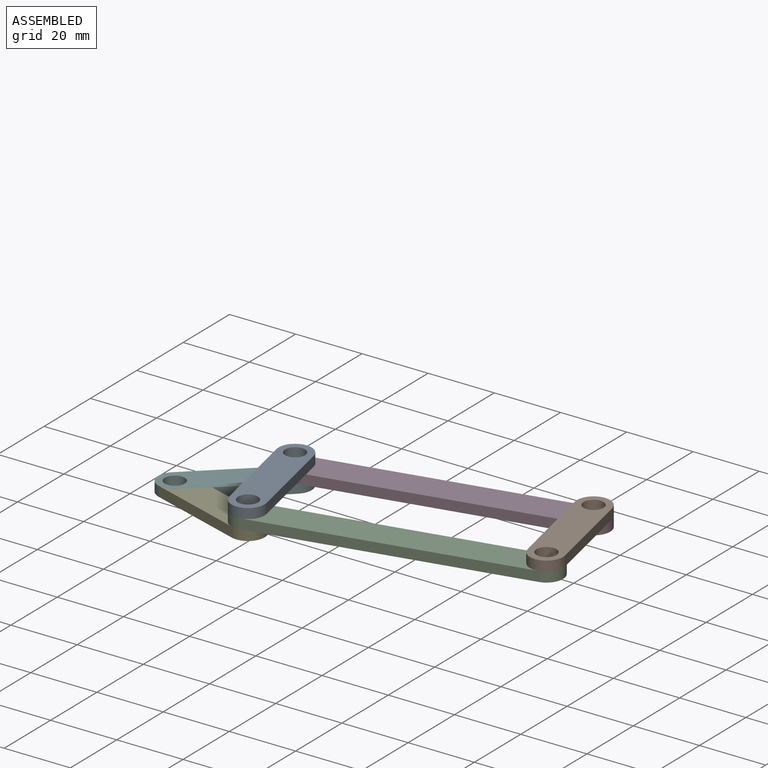
[diagram: assembled view]
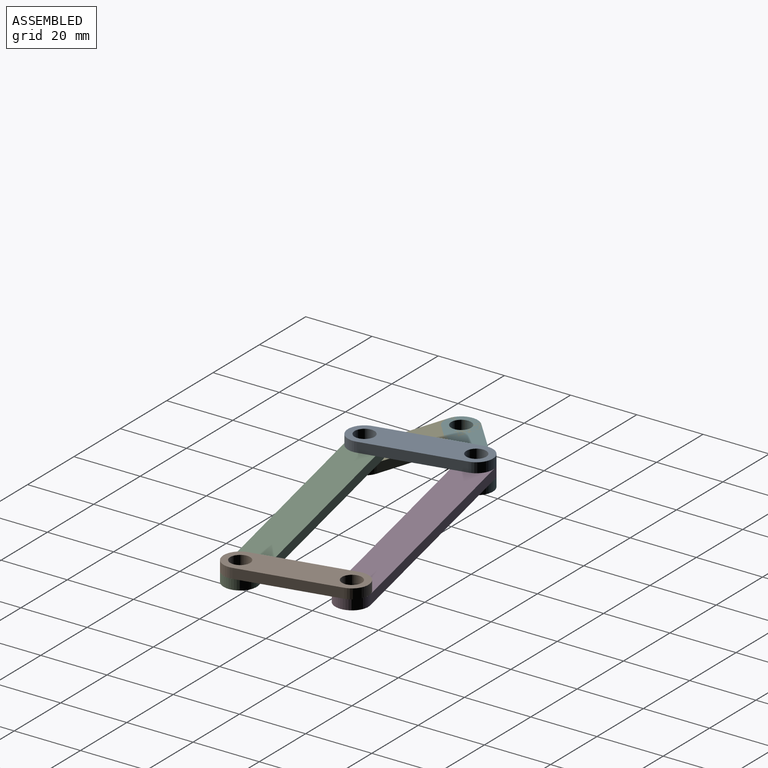
[diagram: assembled view, second angle]
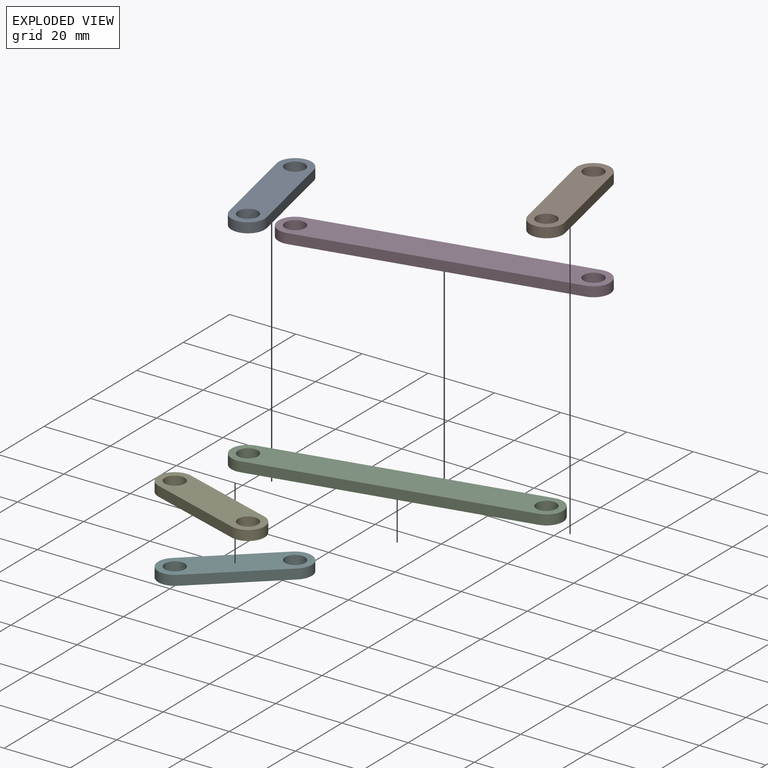
[diagram: exploded view]
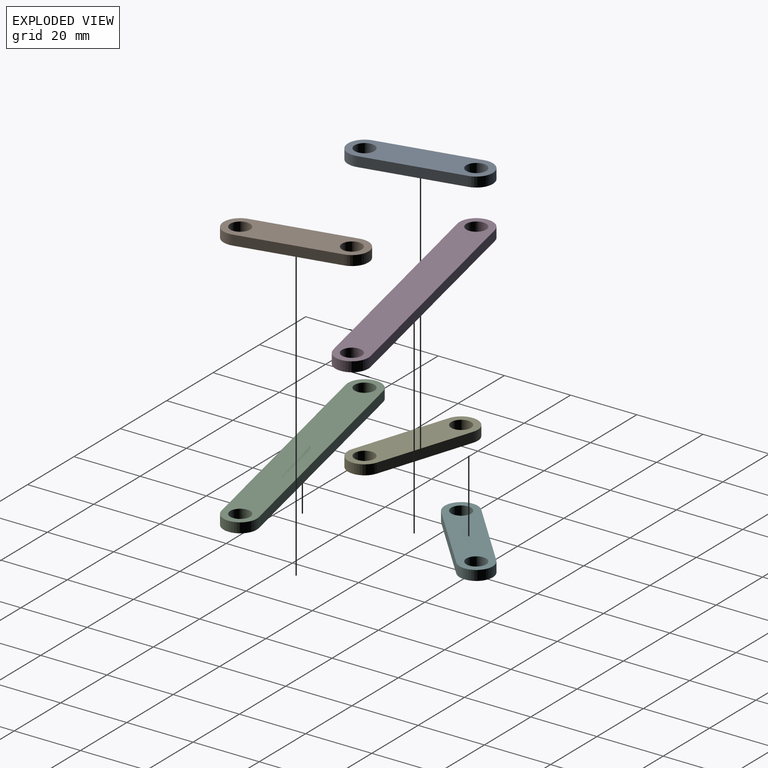
[diagram: exploded view, second angle]
ASSEMBLY  parts=6 mates=7
PART A: 8 faces, bbox 10x3x40 mm
  f0: plane 30x3mm, normal (1,0,0), area 90mm2, adj f1,f4,f6,f7
  f1: cylinder r=5mm len=10mm, axis (0,1,0), area 47.1mm2, adj f0,f2,f6,f7
  f2: plane 30x3mm, normal (-1,0,0), area 90mm2, adj f1,f4,f6,f7
  f3: cylinder r=3mm len=6mm, axis (0,1,0), area 56.5mm2, adj f6,f7
  f4: cylinder r=5mm len=10mm, axis (0,1,0), area 47.1mm2, adj f0,f2,f6,f7
  f5: cylinder r=3mm len=6mm, axis (0,1,0), area 56.5mm2, adj f6,f7
  f6: plane 40x10mm, normal (0,-1,0), area 322mm2, adj f0,f1,f2,f3,f4,f5
  f7: plane 40x10mm, normal (0,1,0), area 322mm2, adj f0,f1,f2,f3,f4,f5
PART B: same geometry as A
PART C: 8 faces, bbox 10x3x90 mm
  f0: plane 80x3mm, normal (-1,0,0), area 240mm2, adj f1,f4,f6,f7
  f1: cylinder r=5mm len=10mm, axis (0,1,0), area 47.1mm2, adj f0,f2,f6,f7
  f2: plane 80x3mm, normal (1,0,0), area 240mm2, adj f1,f4,f6,f7
  f3: cylinder r=3mm len=6mm, axis (0,1,0), area 56.5mm2, adj f6,f7
  f4: cylinder r=5mm len=10mm, axis (0,1,0), area 47.1mm2, adj f0,f2,f6,f7
  f5: cylinder r=3mm len=6mm, axis (0,1,0), area 56.5mm2, adj f6,f7
  f6: plane 90x10mm, normal (0,-1,0), area 822mm2, adj f0,f1,f2,f3,f4,f5
  f7: plane 90x10mm, normal (0,1,0), area 822mm2, adj f0,f1,f2,f3,f4,f5
PART D: same geometry as C
PART E: same geometry as A
PART F: same geometry as A
PLACE A rot(axis=(0.99,0.11,0.11),90.6deg) t=(-78.14,-17.15,6)mm
PLACE B rot(axis=(0.99,0.11,0.11),90.6deg) t=(0,0,6)mm
PLACE C rot(axis=(0.49,0.61,0.61),127.4deg) t=(-32.75,-37.9,3)mm
PLACE D rot(axis=(0.49,0.61,0.61),127.4deg) t=(-39.07,-8.57,3)mm
PLACE E rot(axis=(0.46,-0.63,-0.63),130.8deg) t=(-71.82,-46.47,0)mm
PLACE F rot(axis=(0.85,-0.38,-0.38),99.5deg) t=(-78.14,-17.15,0)mm
MATE revolute D.f4 <-> B.f5  axis (0,0,1) through (0,0,3)mm
MATE revolute A.f5 <-> D.f1  axis (0,0,-1) through (-78.14,-17.15,3)mm
MATE revolute C.f1 <-> E.f5  axis (0,0,-1) through (-71.82,-46.47,0)mm
MATE revolute F.f5 <-> D.f1  axis (0,0,1) through (-78.14,-17.15,0)mm
MATE revolute C.f4 <-> B.f1  axis (0,0,1) through (6.32,-29.33,3)mm
MATE revolute C.f1 <-> A.f1  axis (0,0,1) through (-71.82,-46.47,3)mm
MATE revolute F.f1 <-> E.f1  axis (0,0,-1) through (-100.38,-37.28,-3)mm
